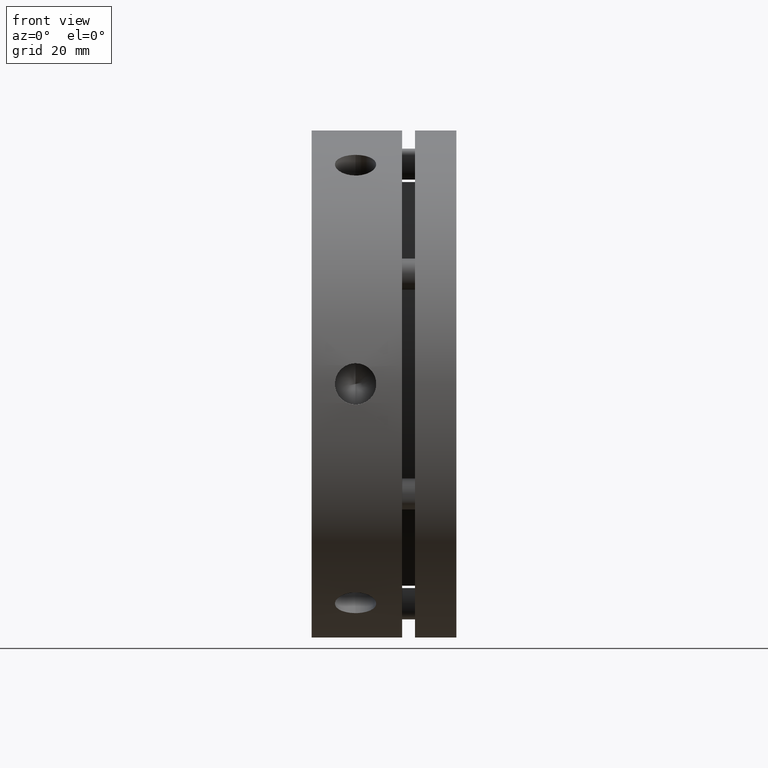
[diagram: clean part render]
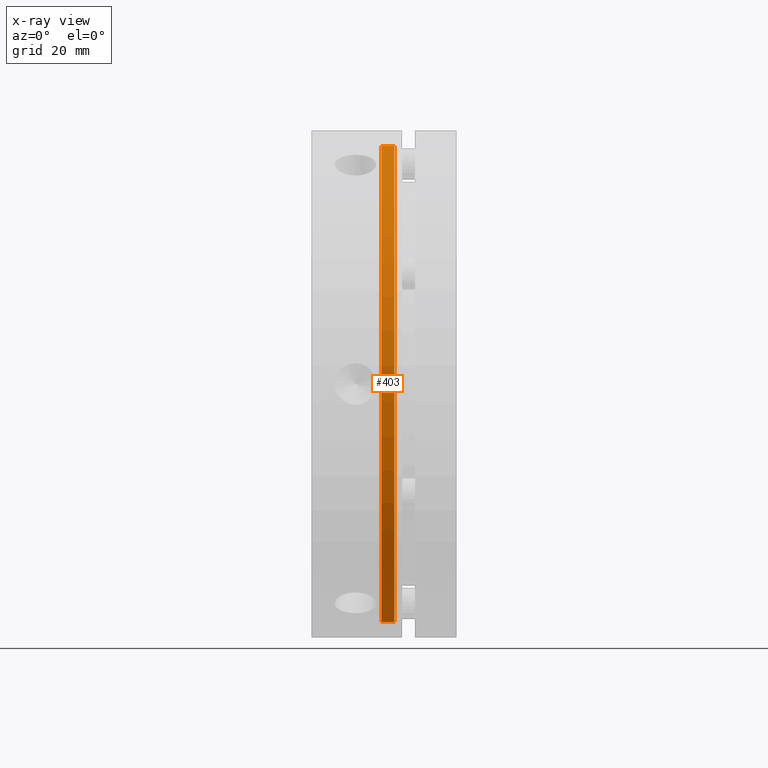
[diagram: x-ray — body ghosted, one internal face saturated and labeled with its STEP entity id]
A machine part, front view, then the same camera in x-ray: the body is ghosted and one INTERNAL B-rep face — a face not visible from any outside direction — is saturated and labeled: STEP entity #403.
In plain terms, the highlighted cylindrical surface (partial cylindrical patch) has radius 46 mm, axis along (-1, 0, 0).
Its self-contained STEP definition (entity closure, byte-faithful):
#403 = ADVANCED_FACE ( 'NONE', ( #1864 ), #1873, .F. ) ;
#705 = EDGE_CURVE ( 'NONE', #813, #814, #3440, .T. ) ;
#706 = EDGE_CURVE ( 'NONE', #814, #819, #3437, .T. ) ;
#707 = EDGE_CURVE ( 'NONE', #819, #820, #3443, .T. ) ;
#708 = EDGE_CURVE ( 'NONE', #813, #820, #3445, .T. ) ;
#813 = VERTEX_POINT ( 'NONE', #4149 ) ;
#814 = VERTEX_POINT ( 'NONE', #4150 ) ;
#819 = VERTEX_POINT ( 'NONE', #4155 ) ;
#820 = VERTEX_POINT ( 'NONE', #4156 ) ;
#1050 = ORIENTED_EDGE ( 'NONE', *, *, #705, .T. ) ;
#1051 = ORIENTED_EDGE ( 'NONE', *, *, #706, .T. ) ;
#1052 = ORIENTED_EDGE ( 'NONE', *, *, #707, .T. ) ;
#1053 = ORIENTED_EDGE ( 'NONE', *, *, #708, .F. ) ;
#1204 = EDGE_LOOP ( 'NONE', ( #1050, #1051, #1052, #1053 ) ) ;
#1864 = FACE_OUTER_BOUND ( 'NONE', #1204, .T. ) ;
#1873 = CYLINDRICAL_SURFACE ( 'NONE', #4532, 46.00000000000000700 ) ;
#2136 = DIRECTION ( 'NONE',  ( 0.0000000000000000000, 0.0000000000000000000, 1.000000000000000000 ) ) ;
#2138 = DIRECTION ( 'NONE',  ( -1.000000000000000000, 0.0000000000000000000, 0.0000000000000000000 ) ) ;
#2140 = CARTESIAN_POINT ( 'NONE',  ( 14.75000000000000200, 0.0000000000000000000, 0.0000000000000000000 ) ) ;
#3437 = LINE ( 'NONE', #4058, #3444 ) ;
#3440 = CIRCLE ( 'NONE', #4740, 46.00000000000000700 ) ;
#3443 = CIRCLE ( 'NONE', #4387, 46.00000000000000700 ) ;
#3444 = VECTOR ( 'NONE', #4052, 1000.000000000000000 ) ;
#3445 = LINE ( 'NONE', #4057, #3447 ) ;
#3447 = VECTOR ( 'NONE', #4056, 1000.000000000000000 ) ;
#4052 = DIRECTION ( 'NONE',  ( -1.000000000000000000, 0.0000000000000000000, 0.0000000000000000000 ) ) ;
#4056 = DIRECTION ( 'NONE',  ( -1.000000000000000000, 0.0000000000000000000, 0.0000000000000000000 ) ) ;
#4057 = CARTESIAN_POINT ( 'NONE',  ( 14.75000000000000200, 0.0000000000000000000, 46.00000000000000700 ) ) ;
#4058 = CARTESIAN_POINT ( 'NONE',  ( 14.75000000000000200, 5.633375276077825500E-015, -46.00000000000000700 ) ) ;
#4059 = CARTESIAN_POINT ( 'NONE',  ( 15.99999999999999600, 0.0000000000000000000, 0.0000000000000000000 ) ) ;
#4060 = DIRECTION ( 'NONE',  ( 1.000000000000000000, -0.0000000000000000000, -0.0000000000000000000 ) ) ;
#4061 = DIRECTION ( 'NONE',  ( 0.0000000000000000000, 0.0000000000000000000, 1.000000000000000000 ) ) ;
#4063 = CARTESIAN_POINT ( 'NONE',  ( 13.50000000000000400, 0.0000000000000000000, 0.0000000000000000000 ) ) ;
#4064 = DIRECTION ( 'NONE',  ( -1.000000000000000000, 0.0000000000000000000, 0.0000000000000000000 ) ) ;
#4065 = DIRECTION ( 'NONE',  ( 0.0000000000000000000, 0.0000000000000000000, 1.000000000000000000 ) ) ;
#4149 = CARTESIAN_POINT ( 'NONE',  ( 15.99999999999999600, 0.0000000000000000000, 46.00000000000000700 ) ) ;
#4150 = CARTESIAN_POINT ( 'NONE',  ( 15.99999999999999600, 5.633375276077825500E-015, -46.00000000000000700 ) ) ;
#4155 = CARTESIAN_POINT ( 'NONE',  ( 13.50000000000000400, 5.633375276077825500E-015, -46.00000000000000700 ) ) ;
#4156 = CARTESIAN_POINT ( 'NONE',  ( 13.50000000000000400, 0.0000000000000000000, 46.00000000000000700 ) ) ;
#4387 = AXIS2_PLACEMENT_3D ( 'NONE', #4063, #4064, #4065 ) ;
#4532 = AXIS2_PLACEMENT_3D ( 'NONE', #2140, #2138, #2136 ) ;
#4740 = AXIS2_PLACEMENT_3D ( 'NONE', #4059, #4060, #4061 ) ;